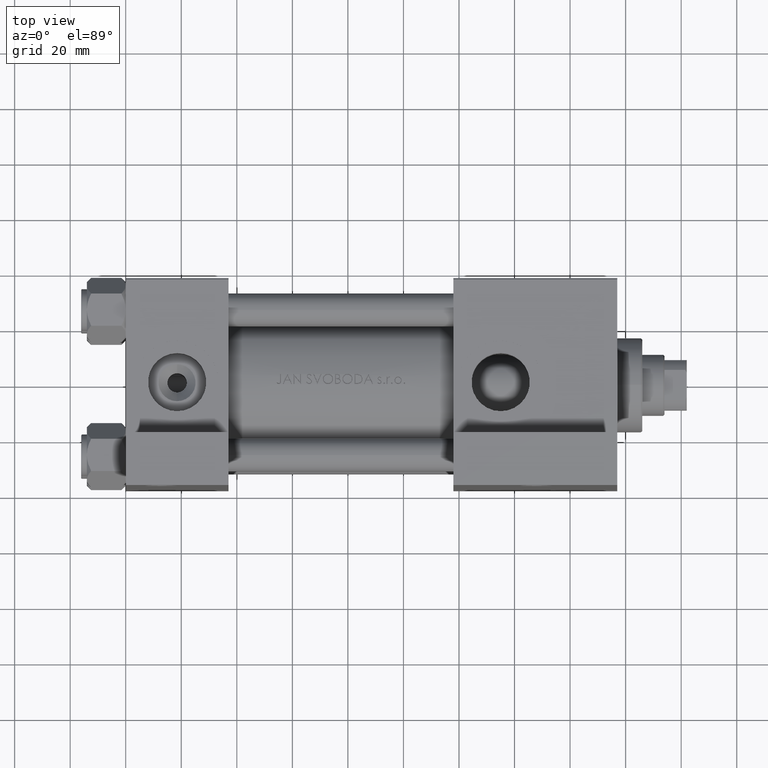
[diagram: clean part render]
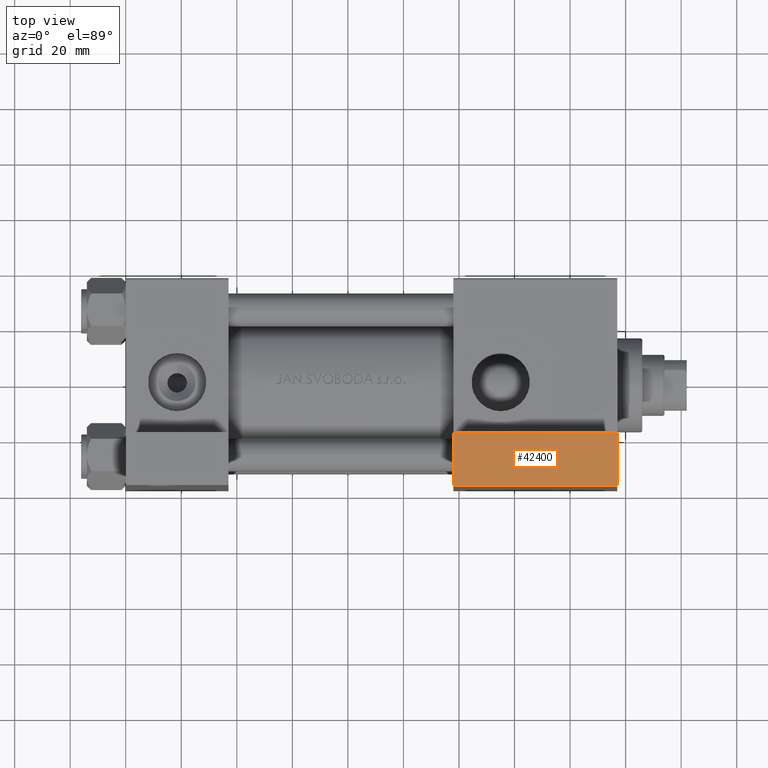
[diagram: same view with one face highlighted and labeled with its STEP entity id]
A machine part, top view. The second image highlights one B-rep face of the part: STEP entity #42400.
In plain terms, the highlighted planar face has unit normal (-0, 0, 1).
Its self-contained STEP definition (entity closure, byte-faithful):
#572 = CARTESIAN_POINT ( 'NONE',  ( 177.0000000000000000, -63.50000000000002842, -37.50000000000000000 ) ) ;
#1150 = VERTEX_POINT ( 'NONE', #6254 ) ;
#1340 = ORIENTED_EDGE ( 'NONE', *, *, #19920, .T. ) ;
#2467 = PLANE ( 'NONE',  #12804 ) ;
#2596 = EDGE_CURVE ( 'NONE', #1150, #5786, #44627, .T. ) ;
#5032 = EDGE_LOOP ( 'NONE', ( #30366, #15136, #35522, #1340 ) ) ;
#5786 = VERTEX_POINT ( 'NONE', #17005 ) ;
#6254 = CARTESIAN_POINT ( 'NONE',  ( 177.0000000000000000, -63.50000000000002842, -18.50000000000000000 ) ) ;
#8267 = LINE ( 'NONE', #23459, #41059 ) ;
#9218 = CARTESIAN_POINT ( 'NONE',  ( 177.0000000000000000, -63.50000000000002842, -18.50000000000000000 ) ) ;
#12804 = AXIS2_PLACEMENT_3D ( 'NONE', #17666, #32846, #44278 ) ;
#13367 = VERTEX_POINT ( 'NONE', #38826 ) ;
#15136 = ORIENTED_EDGE ( 'NONE', *, *, #45758, .F. ) ;
#16514 = DIRECTION ( 'NONE',  ( 0.000000000000000000, 0.000000000000000000, -1.000000000000000000 ) ) ;
#17005 = CARTESIAN_POINT ( 'NONE',  ( 117.9999999999999858, -63.50000000000000000, -18.50000000000000000 ) ) ;
#17666 = CARTESIAN_POINT ( 'NONE',  ( 117.9999999999999858, -63.50000000000000000, -18.50000000000000000 ) ) ;
#19838 = VERTEX_POINT ( 'NONE', #572 ) ;
#19920 = EDGE_CURVE ( 'NONE', #5786, #13367, #20743, .T. ) ;
#20743 = LINE ( 'NONE', #24230, #39106 ) ;
#22232 = DIRECTION ( 'NONE',  ( -1.000000000000000000, 4.704334850106594808E-16, -0.000000000000000000 ) ) ;
#23459 = CARTESIAN_POINT ( 'NONE',  ( 117.9999999999999858, -63.50000000000000000, -37.50000000000000000 ) ) ;
#24230 = CARTESIAN_POINT ( 'NONE',  ( 117.9999999999999858, -63.50000000000000000, -18.50000000000000000 ) ) ;
#25969 = CARTESIAN_POINT ( 'NONE',  ( 117.9999999999999858, -63.50000000000000000, -18.50000000000000000 ) ) ;
#30366 = ORIENTED_EDGE ( 'NONE', *, *, #31559, .F. ) ;
#31559 = EDGE_CURVE ( 'NONE', #19838, #13367, #8267, .T. ) ;
#32846 = DIRECTION ( 'NONE',  ( -4.704334850106594808E-16, -1.000000000000000000, 0.000000000000000000 ) ) ;
#34253 = VECTOR ( 'NONE', #43087, 1000.000000000000000 ) ;
#35522 = ORIENTED_EDGE ( 'NONE', *, *, #2596, .T. ) ;
#35852 = LINE ( 'NONE', #9218, #34253 ) ;
#36577 = FACE_OUTER_BOUND ( 'NONE', #5032, .T. ) ;
#38826 = CARTESIAN_POINT ( 'NONE',  ( 117.9999999999999858, -63.50000000000000000, -37.50000000000000000 ) ) ;
#38884 = DIRECTION ( 'NONE',  ( -1.000000000000000000, 4.704334850106594808E-16, -0.000000000000000000 ) ) ;
#39106 = VECTOR ( 'NONE', #16514, 1000.000000000000000 ) ;
#41059 = VECTOR ( 'NONE', #38884, 1000.000000000000000 ) ;
#42400 = ADVANCED_FACE ( 'NONE', ( #36577 ), #2467, .T. ) ;
#43087 = DIRECTION ( 'NONE',  ( 0.000000000000000000, 0.000000000000000000, -1.000000000000000000 ) ) ;
#44278 = DIRECTION ( 'NONE',  ( 1.000000000000000000, -4.704334850106594808E-16, 0.000000000000000000 ) ) ;
#44627 = LINE ( 'NONE', #25969, #46577 ) ;
#45758 = EDGE_CURVE ( 'NONE', #1150, #19838, #35852, .T. ) ;
#46577 = VECTOR ( 'NONE', #22232, 1000.000000000000000 ) ;